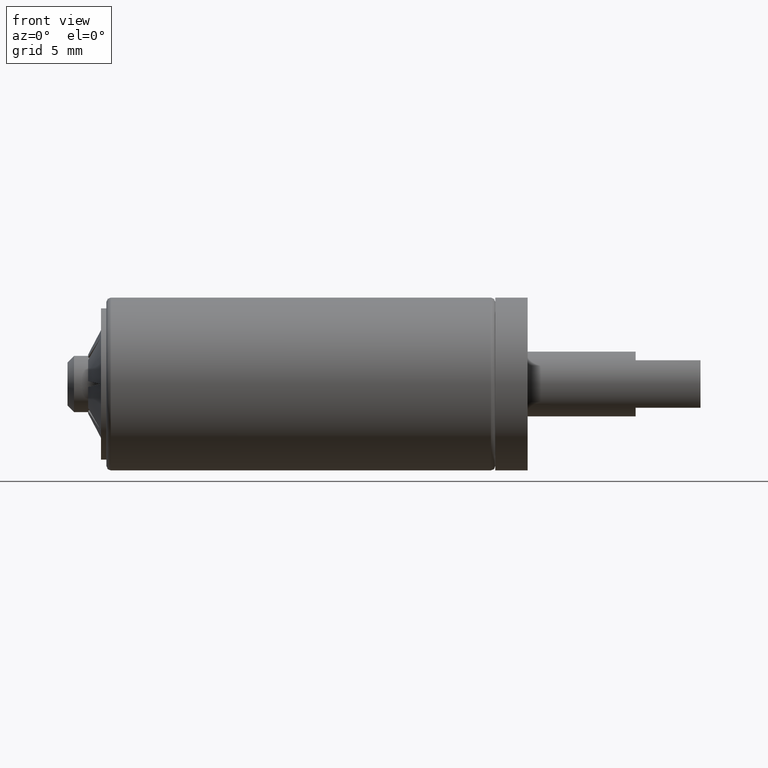
[diagram: clean part render]
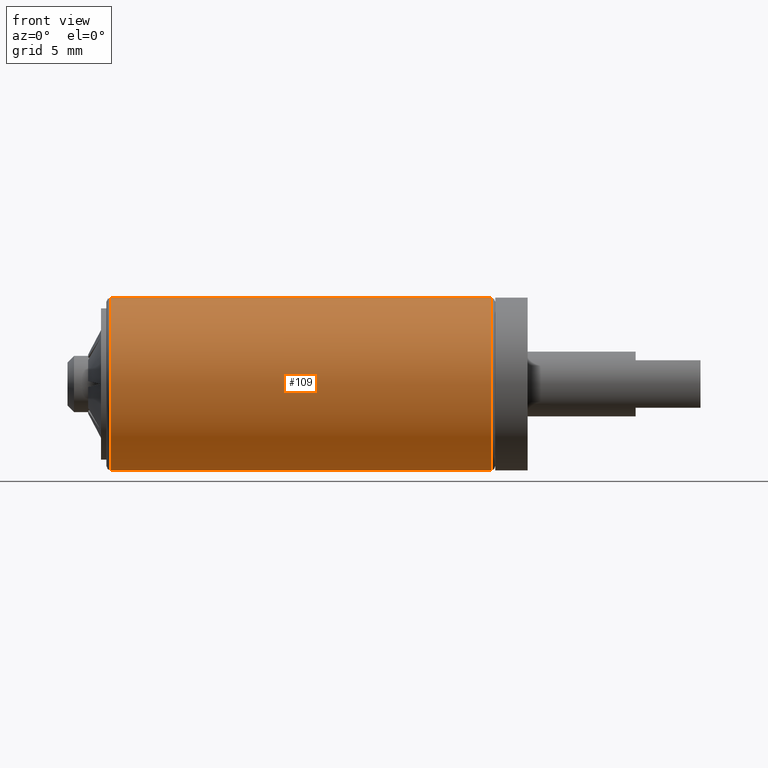
[diagram: same view with one face highlighted and labeled with its STEP entity id]
A machine part, front view. The second image highlights one B-rep face of the part: STEP entity #109.
In plain terms, the highlighted cylindrical surface (partial cylindrical patch) has radius 4 mm, axis along (-1, -0, -0).
Its self-contained STEP definition (entity closure, byte-faithful):
#109=ADVANCED_FACE('',(#883),#882,.T.);
#882=CYLINDRICAL_SURFACE('',#2047,4.00000000000E+00);
#883=FACE_OUTER_BOUND('',#2048,.T.);
#2044=CARTESIAN_POINT('',(0.00000000000E+00,0.00000000000E+00,0.00000000000E+00));
#2045=DIRECTION('',(-1.00000000000E+00,-0.00000000000E+00,-0.00000000000E+00));
#2046=DIRECTION('',(0.00000000000E+00,9.99958130026E-01,9.15085759933E-03));
#2047=AXIS2_PLACEMENT_3D('',#2044,#2045,#2046);
#2048=EDGE_LOOP('',(#3095,#3096,#3097,#3098));
#3095=ORIENTED_EDGE('',*,*,#3778,.F.);
#3096=ORIENTED_EDGE('',*,*,#3779,.F.);
#3097=ORIENTED_EDGE('',*,*,#3780,.F.);
#3098=ORIENTED_EDGE('',*,*,#3776,.F.);
#3776=EDGE_CURVE('',#5449,#5456,#5457,.T.);
#3778=EDGE_CURVE('',#5469,#5449,#5470,.T.);
#3779=EDGE_CURVE('',#5476,#5469,#5477,.T.);
#3780=EDGE_CURVE('',#5456,#5476,#5483,.T.);
#5449=VERTEX_POINT('',#7605);
#5456=VERTEX_POINT('',#7610);
#5457=LINE('',#7611,#7612);
#5469=VERTEX_POINT('',#7618);
#5470=CIRCLE('',#7622,4.00000000000E+00);
#5476=VERTEX_POINT('',#7623);
#5477=LINE('',#7624,#7625);
#5483=CIRCLE('',#7630,4.00000000000E+00);
#7605=CARTESIAN_POINT('',(-8.80000000000E+00,3.35256162083E+00,2.18181818182E+00));
#7610=CARTESIAN_POINT('',(8.80000000000E+00,3.35256162083E+00,2.18181818182E+00));
#7611=CARTESIAN_POINT('',(-8.80000000000E+00,3.35256162083E+00,2.18181818182E+00));
#7612=VECTOR('',#7613,1.76000000000E+01);
#7613=DIRECTION('',(1.00000000000E+00,0.00000000000E+00,0.00000000000E+00));
#7618=CARTESIAN_POINT('',(-8.80000000000E+00,3.35256162083E+00,-2.18181818182E+00));
#7619=CARTESIAN_POINT('',(-8.80000000000E+00,0.00000000000E+00,0.00000000000E+00));
#7620=DIRECTION('',(-1.00000000000E+00,0.00000000000E+00,0.00000000000E+00));
#7621=DIRECTION('',(0.00000000000E+00,8.38140405208E-01,-5.45454545455E-01));
#7622=AXIS2_PLACEMENT_3D('',#7619,#7620,#7621);
#7623=CARTESIAN_POINT('',(8.80000000000E+00,3.35256162083E+00,-2.18181818182E+00));
#7624=CARTESIAN_POINT('',(8.80000000000E+00,3.35256162083E+00,-2.18181818182E+00));
#7625=VECTOR('',#7626,1.76000000000E+01);
#7626=DIRECTION('',(-1.00000000000E+00,0.00000000000E+00,0.00000000000E+00));
#7627=CARTESIAN_POINT('',(8.80000000000E+00,0.00000000000E+00,0.00000000000E+00));
#7628=DIRECTION('',(1.00000000000E+00,0.00000000000E+00,-0.00000000000E+00));
#7629=DIRECTION('',(0.00000000000E+00,8.38140405208E-01,5.45454545455E-01));
#7630=AXIS2_PLACEMENT_3D('',#7627,#7628,#7629);